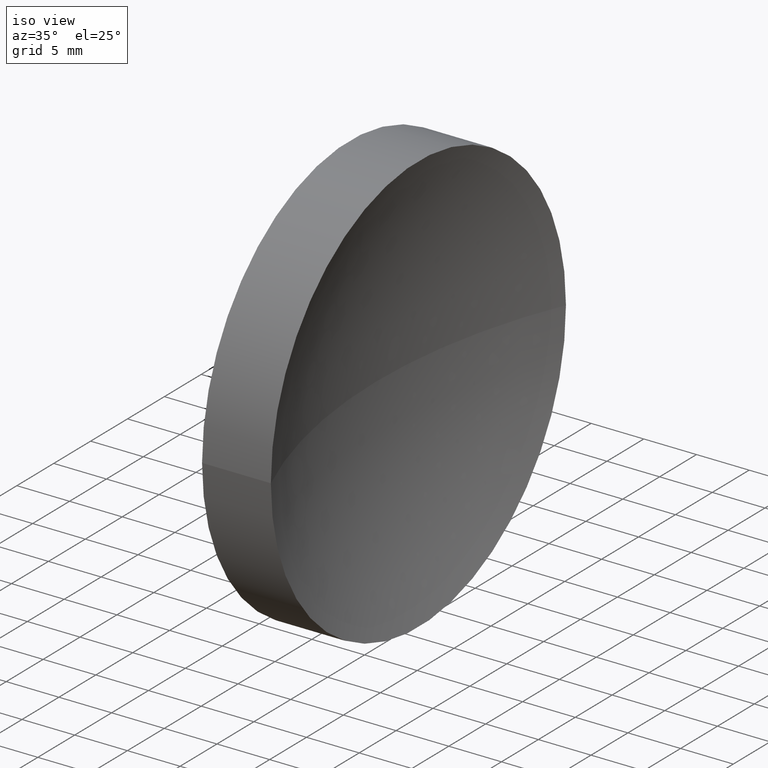
[diagram: clean part render]
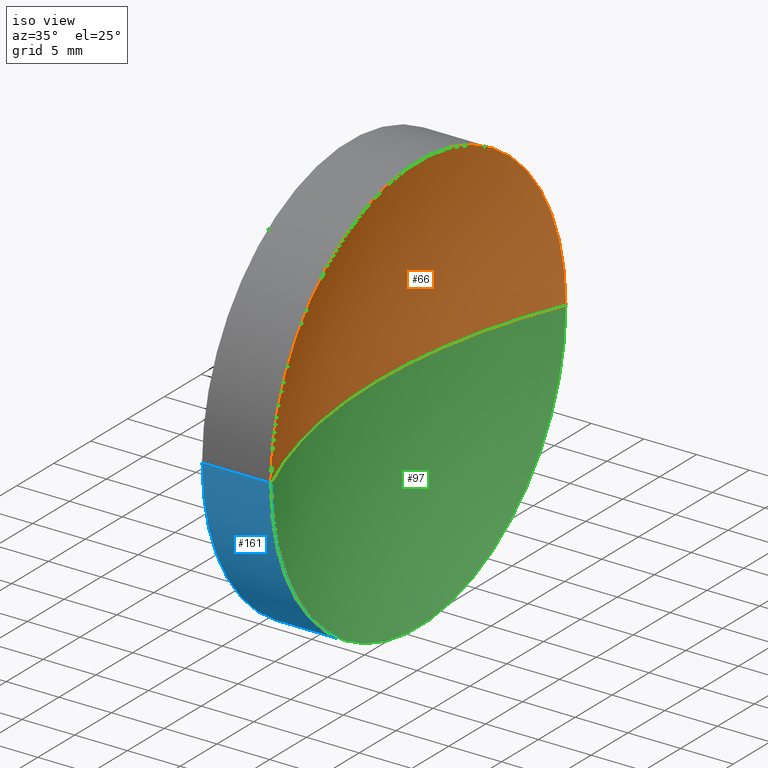
[diagram: same view with three faces highlighted in distinct colors, each labeled with its STEP entity id]
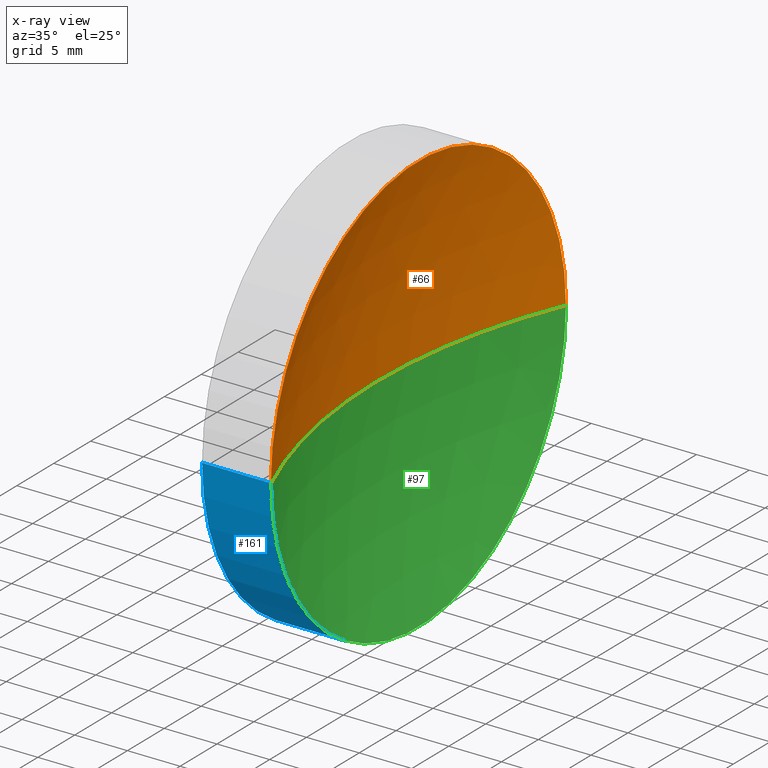
[diagram: x-ray of the same camera — body ghosted, the three highlighted faces saturated]
A machine part, iso view with three faces highlighted in distinct colors.
The next image is the same camera in x-ray (body ghosted, the three faces saturated) — at least one of them is partly hidden behind the body in this view.
Their STEP definitions:

[orange] entity #66 — the highlighted spherical surface has radius 51.64 mm.
#7 = CIRCLE ( 'NONE', #147, 51.63999999999999300 ) ;
#16 = DIRECTION ( 'NONE',  ( -1.000000000000000000, 0.0000000000000000000, 0.0000000000000000000 ) ) ;
#18 = DIRECTION ( 'NONE',  ( 0.0000000000000000000, 0.0000000000000000000, 1.000000000000000000 ) ) ;
#21 = CARTESIAN_POINT ( 'NONE',  ( 117.4754472601861600, 65.15745356914865700, 0.0000000000000000000 ) ) ;
#32 = CARTESIAN_POINT ( 'NONE',  ( 121.5056828236496500, 45.15745356914864300, 0.0000000000000000000 ) ) ;
#34 = EDGE_CURVE ( 'NONE', #86, #127, #49, .T. ) ;
#39 = CARTESIAN_POINT ( 'NONE',  ( 121.5056828236496500, 65.15745182658618300, 0.0000000000000000000 ) ) ;
#40 = DIRECTION ( 'NONE',  ( -1.000000000000000000, 6.488933942079480100E-016, -0.0000000000000000000 ) ) ;
#47 = DIRECTION ( 'NONE',  ( -5.374820994505987400E-016, -1.000000000000000000, 0.0000000000000000000 ) ) ;
#49 = CIRCLE ( 'NONE', #61, 51.63999999999999300 ) ;
#52 = CARTESIAN_POINT ( 'NONE',  ( 121.5056828236496800, 85.15745182658619700, 2.449293384892351400E-015 ) ) ;
#59 = DIRECTION ( 'NONE',  ( 0.0000000000000000000, -1.000000000000000000, -1.224646799147353200E-016 ) ) ;
#61 = AXIS2_PLACEMENT_3D ( 'NONE', #95, #70, #16 ) ;
#66 = ADVANCED_FACE ( 'NONE', ( #164 ), #106, .F. ) ;
#69 = EDGE_LOOP ( 'NONE', ( #87, #128, #81 ) ) ;
#70 = DIRECTION ( 'NONE',  ( 0.0000000000000000000, -0.0000000000000000000, -1.000000000000000000 ) ) ;
#81 = ORIENTED_EDGE ( 'NONE', *, *, #34, .T. ) ;
#86 = VERTEX_POINT ( 'NONE', #32 ) ;
#87 = ORIENTED_EDGE ( 'NONE', *, *, #109, .F. ) ;
#95 = CARTESIAN_POINT ( 'NONE',  ( 169.1154472601861600, 65.15745356914862900, 0.0000000000000000000 ) ) ;
#96 = CARTESIAN_POINT ( 'NONE',  ( 169.1154472601861600, 65.15745356914862900, 0.0000000000000000000 ) ) ;
#100 = DIRECTION ( 'NONE',  ( -7.946652182046252500E-032, -1.224646799147353200E-016, 1.000000000000000000 ) ) ;
#106 = SPHERICAL_SURFACE ( 'NONE', #158, 51.63999999999999300 ) ;
#109 = EDGE_CURVE ( 'NONE', #115, #127, #7, .T. ) ;
#110 = DIRECTION ( 'NONE',  ( -6.938893903907224400E-016, -1.000000000000000000, 0.0000000000000000000 ) ) ;
#115 = VERTEX_POINT ( 'NONE', #52 ) ;
#127 = VERTEX_POINT ( 'NONE', #21 ) ;
#128 = ORIENTED_EDGE ( 'NONE', *, *, #140, .F. ) ;
#138 = CIRCLE ( 'NONE', #166, 20.00000000000001100 ) ;
#140 = EDGE_CURVE ( 'NONE', #86, #115, #138, .T. ) ;
#147 = AXIS2_PLACEMENT_3D ( 'NONE', #96, #100, #59 ) ;
#153 = CARTESIAN_POINT ( 'NONE',  ( 169.1154472601861600, 65.15745356914862900, 0.0000000000000000000 ) ) ;
#158 = AXIS2_PLACEMENT_3D ( 'NONE', #153, #18, #47 ) ;
#164 = FACE_OUTER_BOUND ( 'NONE', #69, .T. ) ;
#166 = AXIS2_PLACEMENT_3D ( 'NONE', #39, #40, #110 ) ;

[blue] entity #161 — the highlighted cylindrical surface (partial cylindrical patch) has radius 20 mm, axis along (-1, 0, -0).
#5 = DIRECTION ( 'NONE',  ( -1.000000000000000000, 6.488933942079480100E-016, -0.0000000000000000000 ) ) ;
#8 = DIRECTION ( 'NONE',  ( -1.000000000000000000, 6.488933942079480100E-016, -0.0000000000000000000 ) ) ;
#9 = DIRECTION ( 'NONE',  ( -6.938893903907227400E-016, -1.000000000000000000, 0.0000000000000000000 ) ) ;
#14 = ORIENTED_EDGE ( 'NONE', *, *, #79, .F. ) ;
#17 = ORIENTED_EDGE ( 'NONE', *, *, #146, .F. ) ;
#22 = DIRECTION ( 'NONE',  ( -1.000000000000000000, 6.488933942079480100E-016, -0.0000000000000000000 ) ) ;
#30 = CARTESIAN_POINT ( 'NONE',  ( 114.9754472601862300, 85.15745182658619700, 2.449293598294710100E-015 ) ) ;
#32 = CARTESIAN_POINT ( 'NONE',  ( 121.5056828236496500, 45.15745356914864300, 0.0000000000000000000 ) ) ;
#35 = CARTESIAN_POINT ( 'NONE',  ( 114.9754472601862000, 45.15745182658619000, 0.0000000000000000000 ) ) ;
#36 = VERTEX_POINT ( 'NONE', #30 ) ;
#38 = CARTESIAN_POINT ( 'NONE',  ( 110.0147892488423800, 85.15745182658621100, 2.449293598294708100E-015 ) ) ;
#44 = LINE ( 'NONE', #117, #108 ) ;
#51 = CARTESIAN_POINT ( 'NONE',  ( 121.5056828236496500, 65.15745182658618300, 0.0000000000000000000 ) ) ;
#52 = CARTESIAN_POINT ( 'NONE',  ( 121.5056828236496800, 85.15745182658619700, 2.449293384892351400E-015 ) ) ;
#53 = EDGE_CURVE ( 'NONE', #86, #111, #44, .T. ) ;
#58 = DIRECTION ( 'NONE',  ( -1.000000000000000000, 6.488933942079480100E-016, -0.0000000000000000000 ) ) ;
#60 = DIRECTION ( 'NONE',  ( -6.938893903907224400E-016, -1.000000000000000000, 0.0000000000000000000 ) ) ;
#72 = ORIENTED_EDGE ( 'NONE', *, *, #53, .T. ) ;
#79 = EDGE_CURVE ( 'NONE', #36, #111, #152, .T. ) ;
#83 = CIRCLE ( 'NONE', #85, 20.00000000000001100 ) ;
#85 = AXIS2_PLACEMENT_3D ( 'NONE', #51, #8, #60 ) ;
#86 = VERTEX_POINT ( 'NONE', #32 ) ;
#93 = FACE_OUTER_BOUND ( 'NONE', #101, .T. ) ;
#94 = EDGE_CURVE ( 'NONE', #115, #86, #83, .T. ) ;
#98 = LINE ( 'NONE', #38, #157 ) ;
#101 = EDGE_LOOP ( 'NONE', ( #17, #130, #72, #14 ) ) ;
#105 = AXIS2_PLACEMENT_3D ( 'NONE', #132, #5, #131 ) ;
#108 = VECTOR ( 'NONE', #58, 1000.000000000000000 ) ;
#111 = VERTEX_POINT ( 'NONE', #35 ) ;
#112 = DIRECTION ( 'NONE',  ( -1.000000000000000000, 6.488933942079480100E-016, -0.0000000000000000000 ) ) ;
#115 = VERTEX_POINT ( 'NONE', #52 ) ;
#117 = CARTESIAN_POINT ( 'NONE',  ( 110.0147892488423500, 45.15745182658618300, 0.0000000000000000000 ) ) ;
#125 = CYLINDRICAL_SURFACE ( 'NONE', #105, 20.00000000000001100 ) ;
#130 = ORIENTED_EDGE ( 'NONE', *, *, #94, .T. ) ;
#131 = DIRECTION ( 'NONE',  ( -6.938893903907224400E-016, -1.000000000000000000, 0.0000000000000000000 ) ) ;
#132 = CARTESIAN_POINT ( 'NONE',  ( 110.0147892488423600, 65.15745182658619700, 0.0000000000000000000 ) ) ;
#145 = CARTESIAN_POINT ( 'NONE',  ( 114.9754472601862100, 65.15745182658619700, 0.0000000000000000000 ) ) ;
#146 = EDGE_CURVE ( 'NONE', #115, #36, #98, .T. ) ;
#152 = CIRCLE ( 'NONE', #165, 20.00000000000000400 ) ;
#157 = VECTOR ( 'NONE', #112, 1000.000000000000000 ) ;
#161 = ADVANCED_FACE ( 'NONE', ( #93 ), #125, .T. ) ;
#165 = AXIS2_PLACEMENT_3D ( 'NONE', #145, #22, #9 ) ;

[green] entity #97 — the highlighted spherical surface has radius 51.64 mm.
#3 = EDGE_LOOP ( 'NONE', ( #104, #63, #43 ) ) ;
#7 = CIRCLE ( 'NONE', #147, 51.63999999999999300 ) ;
#8 = DIRECTION ( 'NONE',  ( -1.000000000000000000, 6.488933942079480100E-016, -0.0000000000000000000 ) ) ;
#16 = DIRECTION ( 'NONE',  ( -1.000000000000000000, 0.0000000000000000000, 0.0000000000000000000 ) ) ;
#21 = CARTESIAN_POINT ( 'NONE',  ( 117.4754472601861600, 65.15745356914865700, 0.0000000000000000000 ) ) ;
#23 = DIRECTION ( 'NONE',  ( -5.374820994505987400E-016, -1.000000000000000000, 0.0000000000000000000 ) ) ;
#32 = CARTESIAN_POINT ( 'NONE',  ( 121.5056828236496500, 45.15745356914864300, 0.0000000000000000000 ) ) ;
#34 = EDGE_CURVE ( 'NONE', #86, #127, #49, .T. ) ;
#43 = ORIENTED_EDGE ( 'NONE', *, *, #34, .F. ) ;
#46 = SPHERICAL_SURFACE ( 'NONE', #155, 51.63999999999999300 ) ;
#49 = CIRCLE ( 'NONE', #61, 51.63999999999999300 ) ;
#51 = CARTESIAN_POINT ( 'NONE',  ( 121.5056828236496500, 65.15745182658618300, 0.0000000000000000000 ) ) ;
#52 = CARTESIAN_POINT ( 'NONE',  ( 121.5056828236496800, 85.15745182658619700, 2.449293384892351400E-015 ) ) ;
#59 = DIRECTION ( 'NONE',  ( 0.0000000000000000000, -1.000000000000000000, -1.224646799147353200E-016 ) ) ;
#60 = DIRECTION ( 'NONE',  ( -6.938893903907224400E-016, -1.000000000000000000, 0.0000000000000000000 ) ) ;
#61 = AXIS2_PLACEMENT_3D ( 'NONE', #95, #70, #16 ) ;
#63 = ORIENTED_EDGE ( 'NONE', *, *, #109, .T. ) ;
#64 = CARTESIAN_POINT ( 'NONE',  ( 169.1154472601861600, 65.15745356914862900, 0.0000000000000000000 ) ) ;
#70 = DIRECTION ( 'NONE',  ( 0.0000000000000000000, -0.0000000000000000000, -1.000000000000000000 ) ) ;
#83 = CIRCLE ( 'NONE', #85, 20.00000000000001100 ) ;
#84 = FACE_OUTER_BOUND ( 'NONE', #3, .T. ) ;
#85 = AXIS2_PLACEMENT_3D ( 'NONE', #51, #8, #60 ) ;
#86 = VERTEX_POINT ( 'NONE', #32 ) ;
#94 = EDGE_CURVE ( 'NONE', #115, #86, #83, .T. ) ;
#95 = CARTESIAN_POINT ( 'NONE',  ( 169.1154472601861600, 65.15745356914862900, 0.0000000000000000000 ) ) ;
#96 = CARTESIAN_POINT ( 'NONE',  ( 169.1154472601861600, 65.15745356914862900, 0.0000000000000000000 ) ) ;
#97 = ADVANCED_FACE ( 'NONE', ( #84 ), #46, .F. ) ;
#99 = DIRECTION ( 'NONE',  ( 0.0000000000000000000, 0.0000000000000000000, 1.000000000000000000 ) ) ;
#100 = DIRECTION ( 'NONE',  ( -7.946652182046252500E-032, -1.224646799147353200E-016, 1.000000000000000000 ) ) ;
#104 = ORIENTED_EDGE ( 'NONE', *, *, #94, .F. ) ;
#109 = EDGE_CURVE ( 'NONE', #115, #127, #7, .T. ) ;
#115 = VERTEX_POINT ( 'NONE', #52 ) ;
#127 = VERTEX_POINT ( 'NONE', #21 ) ;
#147 = AXIS2_PLACEMENT_3D ( 'NONE', #96, #100, #59 ) ;
#155 = AXIS2_PLACEMENT_3D ( 'NONE', #64, #99, #23 ) ;